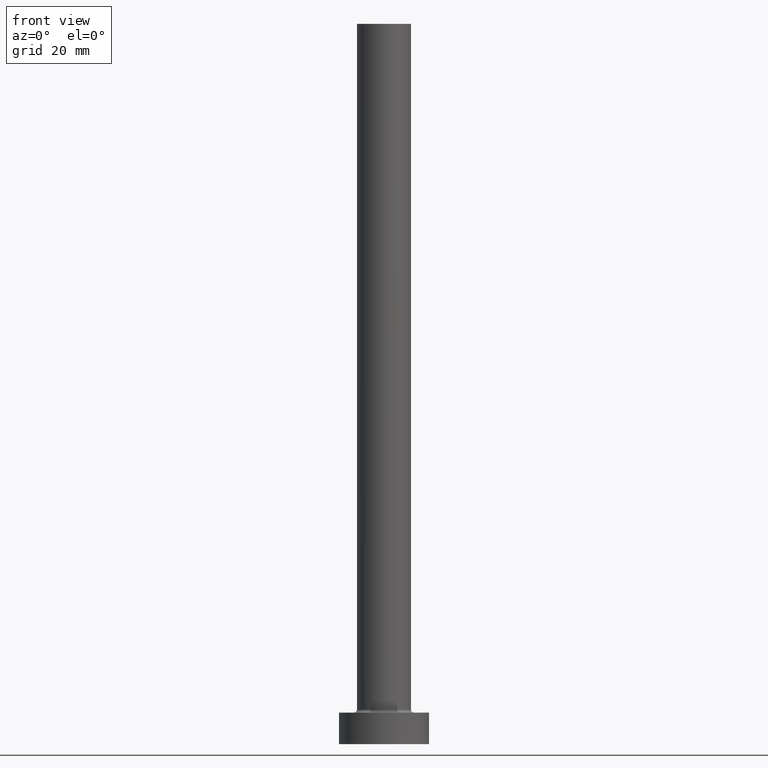
[diagram: clean part render]
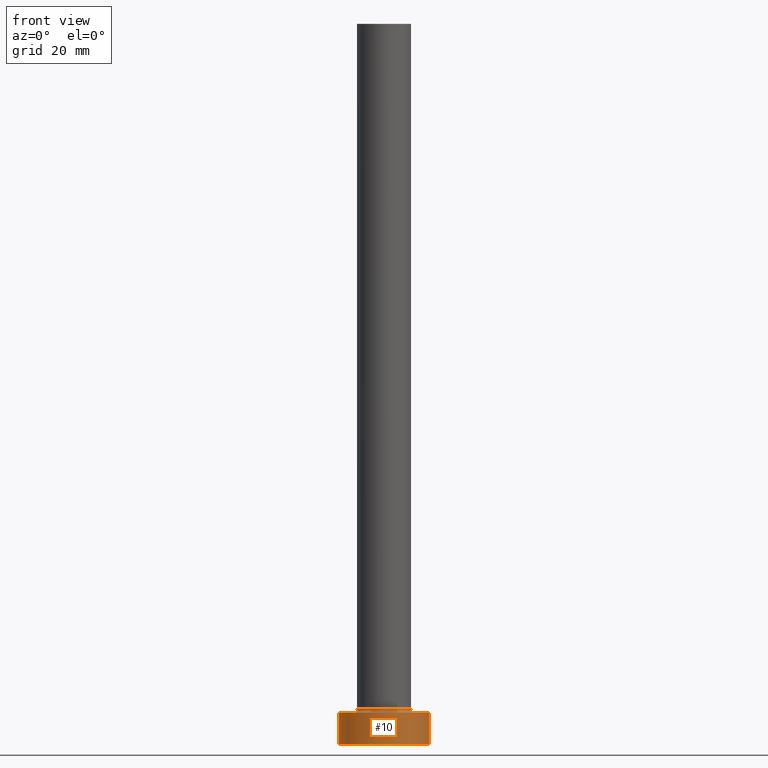
[diagram: same view with one face highlighted and labeled with its STEP entity id]
A machine part, front view. The second image highlights one B-rep face of the part: STEP entity #10.
In plain terms, the highlighted cylindrical surface (partial cylindrical patch) has radius 10 mm, axis along (-0, -0, -1).
Its self-contained STEP definition (entity closure, byte-faithful):
#2 = VERTEX_POINT ( 'NONE', #297 ) ;
#7 = CARTESIAN_POINT ( 'NONE',  ( 10.00000000000000000, 1.224646799147353256E-15, 0.000000000000000000 ) ) ;
#10 = ADVANCED_FACE ( 'NONE', ( #149 ), #293, .T. ) ;
#16 = EDGE_CURVE ( 'NONE', #111, #254, #328, .T. ) ;
#23 = VERTEX_POINT ( 'NONE', #130 ) ;
#53 = VECTOR ( 'NONE', #436, 1000.000000000000000 ) ;
#68 = VECTOR ( 'NONE', #263, 1000.000000000000000 ) ;
#92 = DIRECTION ( 'NONE',  ( 0.000000000000000000, 0.000000000000000000, 1.000000000000000000 ) ) ;
#111 = VERTEX_POINT ( 'NONE', #413 ) ;
#116 = LINE ( 'NONE', #189, #68 ) ;
#130 = CARTESIAN_POINT ( 'NONE',  ( 10.00000000000000000, 1.224646799147353256E-15, 7.000000000000000000 ) ) ;
#149 = FACE_OUTER_BOUND ( 'NONE', #382, .T. ) ;
#186 = AXIS2_PLACEMENT_3D ( 'NONE', #203, #92, #304 ) ;
#189 = CARTESIAN_POINT ( 'NONE',  ( 10.00000000000000000, 1.224646799147353256E-15, 7.000000000000000000 ) ) ;
#200 = DIRECTION ( 'NONE',  ( 0.000000000000000000, 0.000000000000000000, 1.000000000000000000 ) ) ;
#203 = CARTESIAN_POINT ( 'NONE',  ( 0.000000000000000000, 0.000000000000000000, 7.000000000000000000 ) ) ;
#207 = ORIENTED_EDGE ( 'NONE', *, *, #400, .F. ) ;
#230 = EDGE_CURVE ( 'NONE', #23, #254, #116, .T. ) ;
#254 = VERTEX_POINT ( 'NONE', #7 ) ;
#260 = CIRCLE ( 'NONE', #186, 10.00000000000000000 ) ;
#263 = DIRECTION ( 'NONE',  ( -0.000000000000000000, -0.000000000000000000, -1.000000000000000000 ) ) ;
#264 = DIRECTION ( 'NONE',  ( -0.000000000000000000, -0.000000000000000000, -1.000000000000000000 ) ) ;
#293 = CYLINDRICAL_SURFACE ( 'NONE', #320, 10.00000000000000000 ) ;
#297 = CARTESIAN_POINT ( 'NONE',  ( -10.00000000000000000, 0.000000000000000000, 7.000000000000000000 ) ) ;
#304 = DIRECTION ( 'NONE',  ( 1.000000000000000000, 0.000000000000000000, 0.000000000000000000 ) ) ;
#319 = EDGE_CURVE ( 'NONE', #2, #111, #356, .T. ) ;
#320 = AXIS2_PLACEMENT_3D ( 'NONE', #437, #264, #403 ) ;
#328 = CIRCLE ( 'NONE', #376, 10.00000000000000000 ) ;
#356 = LINE ( 'NONE', #435, #53 ) ;
#376 = AXIS2_PLACEMENT_3D ( 'NONE', #407, #200, #417 ) ;
#379 = ORIENTED_EDGE ( 'NONE', *, *, #230, .F. ) ;
#380 = ORIENTED_EDGE ( 'NONE', *, *, #16, .T. ) ;
#382 = EDGE_LOOP ( 'NONE', ( #379, #207, #425, #380 ) ) ;
#400 = EDGE_CURVE ( 'NONE', #2, #23, #260, .T. ) ;
#403 = DIRECTION ( 'NONE',  ( -1.000000000000000000, 0.000000000000000000, 0.000000000000000000 ) ) ;
#407 = CARTESIAN_POINT ( 'NONE',  ( 0.000000000000000000, 0.000000000000000000, 0.000000000000000000 ) ) ;
#413 = CARTESIAN_POINT ( 'NONE',  ( -10.00000000000000000, 0.000000000000000000, 0.000000000000000000 ) ) ;
#417 = DIRECTION ( 'NONE',  ( 1.000000000000000000, 0.000000000000000000, 0.000000000000000000 ) ) ;
#425 = ORIENTED_EDGE ( 'NONE', *, *, #319, .T. ) ;
#435 = CARTESIAN_POINT ( 'NONE',  ( -10.00000000000000000, 0.000000000000000000, 7.000000000000000000 ) ) ;
#436 = DIRECTION ( 'NONE',  ( -0.000000000000000000, -0.000000000000000000, -1.000000000000000000 ) ) ;
#437 = CARTESIAN_POINT ( 'NONE',  ( 0.000000000000000000, 0.000000000000000000, 7.000000000000000000 ) ) ;